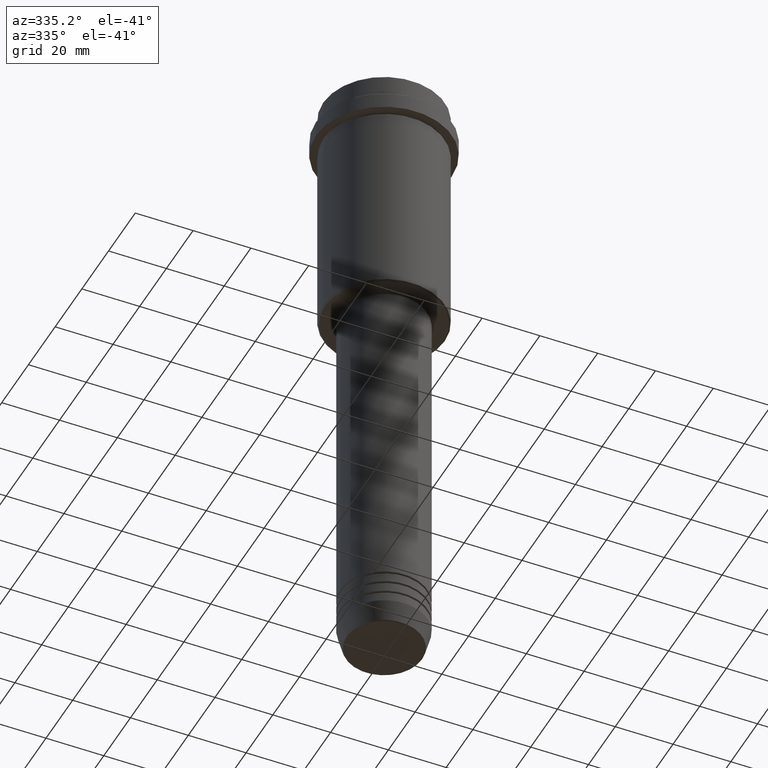
[diagram: clean part render]
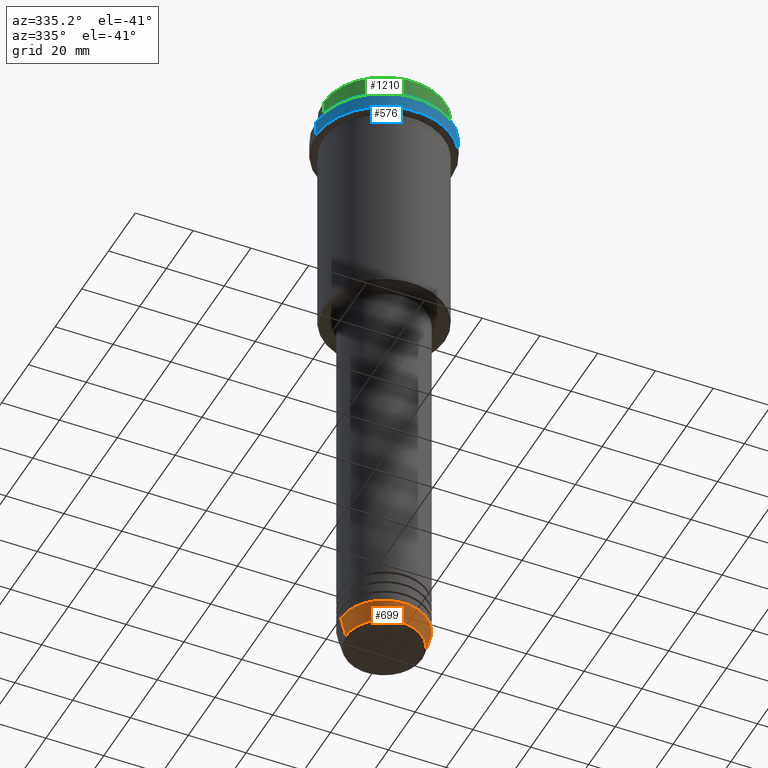
[diagram: same view with three faces highlighted in distinct colors, each labeled with its STEP entity id]
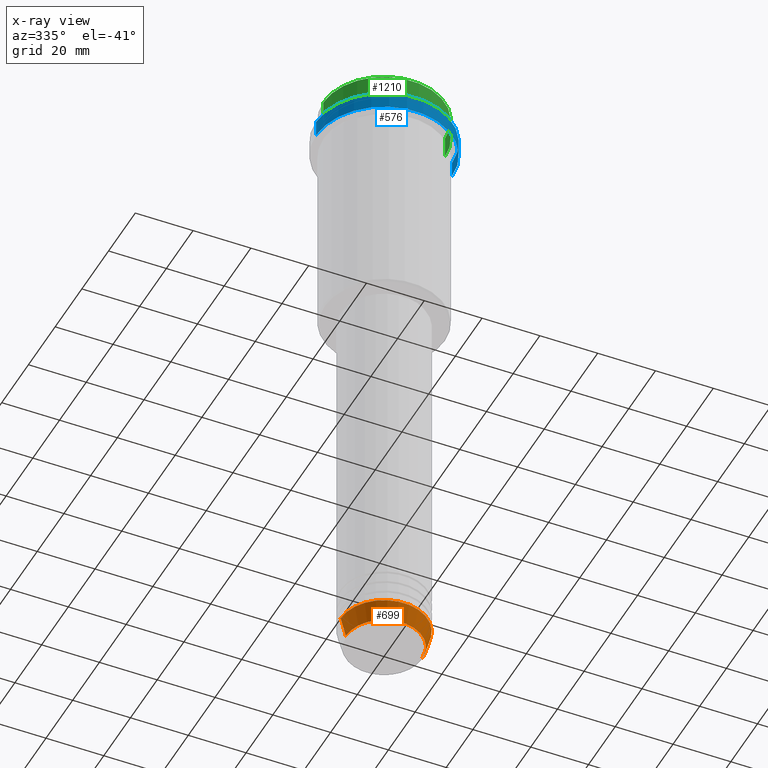
[diagram: x-ray of the same camera — body ghosted, the three highlighted faces saturated]
A machine part, auxiliary view with three faces highlighted in distinct colors.
The next image is the same camera in x-ray (body ghosted, the three faces saturated) — at least one of them is partly hidden behind the body in this view.
Their STEP definitions:

[orange] entity #699 — the highlighted conical surface has half-angle 15 deg.
#41 = DIRECTION ( 'NONE',  ( 0.2588190451025213501, 0.000000000000000000, 0.9659258262890680902 ) ) ;
#80 = AXIS2_PLACEMENT_3D ( 'NONE', #776, #1205, #661 ) ;
#140 = EDGE_CURVE ( 'NONE', #239, #464, #554, .T. ) ;
#157 = EDGE_CURVE ( 'NONE', #784, #464, #1021, .T. ) ;
#189 = LINE ( 'NONE', #409, #510 ) ;
#239 = VERTEX_POINT ( 'NONE', #1382 ) ;
#277 = VECTOR ( 'NONE', #41, 1000.000000000000000 ) ;
#305 = CIRCLE ( 'NONE', #872, 13.22365507213719482 ) ;
#405 = ORIENTED_EDGE ( 'NONE', *, *, #529, .T. ) ;
#409 = CARTESIAN_POINT ( 'NONE',  ( -15.00000000000000000, 1.836970198721029589E-15, -213.0000000000000284 ) ) ;
#440 = VERTEX_POINT ( 'NONE', #1212 ) ;
#464 = VERTEX_POINT ( 'NONE', #674 ) ;
#510 = VECTOR ( 'NONE', #1065, 1000.000000000000000 ) ;
#529 = EDGE_CURVE ( 'NONE', #440, #784, #305, .T. ) ;
#532 = ORIENTED_EDGE ( 'NONE', *, *, #657, .F. ) ;
#554 = CIRCLE ( 'NONE', #821, 15.00000000000000000 ) ;
#580 = EDGE_LOOP ( 'NONE', ( #532, #405, #1251, #1331 ) ) ;
#593 = CONICAL_SURFACE ( 'NONE', #80, 15.00000000000000000, 0.2617993877991500740 ) ;
#657 = EDGE_CURVE ( 'NONE', #440, #239, #189, .T. ) ;
#661 = DIRECTION ( 'NONE',  ( 1.000000000000000000, 0.000000000000000000, 0.000000000000000000 ) ) ;
#674 = CARTESIAN_POINT ( 'NONE',  ( 15.00000000000000000, 0.000000000000000000, -213.0000000000000284 ) ) ;
#699 = ADVANCED_FACE ( 'NONE', ( #1109 ), #593, .T. ) ;
#712 = CARTESIAN_POINT ( 'NONE',  ( 15.00000000000000000, 0.000000000000000000, -213.0000000000000284 ) ) ;
#739 = DIRECTION ( 'NONE',  ( 1.000000000000000000, 0.000000000000000000, 0.000000000000000000 ) ) ;
#776 = CARTESIAN_POINT ( 'NONE',  ( 0.000000000000000000, 0.000000000000000000, -213.0000000000000284 ) ) ;
#784 = VERTEX_POINT ( 'NONE', #1012 ) ;
#819 = CARTESIAN_POINT ( 'NONE',  ( 0.000000000000000000, 0.000000000000000000, -213.0000000000000284 ) ) ;
#821 = AXIS2_PLACEMENT_3D ( 'NONE', #819, #1234, #1347 ) ;
#872 = AXIS2_PLACEMENT_3D ( 'NONE', #963, #1391, #739 ) ;
#963 = CARTESIAN_POINT ( 'NONE',  ( 0.000000000000000000, 0.000000000000000000, -219.6294095225512706 ) ) ;
#1012 = CARTESIAN_POINT ( 'NONE',  ( 13.22365507213719482, 0.000000000000000000, -219.6294095225512706 ) ) ;
#1021 = LINE ( 'NONE', #712, #277 ) ;
#1065 = DIRECTION ( 'NONE',  ( -0.2588190451025213501, 3.169619151431772337E-17, 0.9659258262890680902 ) ) ;
#1109 = FACE_OUTER_BOUND ( 'NONE', #580, .T. ) ;
#1205 = DIRECTION ( 'NONE',  ( -0.000000000000000000, -0.000000000000000000, 1.000000000000000000 ) ) ;
#1212 = CARTESIAN_POINT ( 'NONE',  ( -13.22365507213719660, 1.728200442216588780E-15, -219.6294095225512706 ) ) ;
#1234 = DIRECTION ( 'NONE',  ( -0.000000000000000000, -0.000000000000000000, 1.000000000000000000 ) ) ;
#1251 = ORIENTED_EDGE ( 'NONE', *, *, #157, .T. ) ;
#1331 = ORIENTED_EDGE ( 'NONE', *, *, #140, .F. ) ;
#1347 = DIRECTION ( 'NONE',  ( 1.000000000000000000, 0.000000000000000000, 0.000000000000000000 ) ) ;
#1382 = CARTESIAN_POINT ( 'NONE',  ( -15.00000000000000000, 1.836970198721029589E-15, -213.0000000000000284 ) ) ;
#1391 = DIRECTION ( 'NONE',  ( -0.000000000000000000, -0.000000000000000000, 1.000000000000000000 ) ) ;

[blue] entity #576 — the highlighted cylindrical surface (partial cylindrical patch) has radius 23.5 mm, axis along (-0, -0, 1).
#5 = CIRCLE ( 'NONE', #995, 23.50000000000000000 ) ;
#34 = LINE ( 'NONE', #1188, #788 ) ;
#69 = CYLINDRICAL_SURFACE ( 'NONE', #1309, 23.50000000000000000 ) ;
#97 = CARTESIAN_POINT ( 'NONE',  ( 0.000000000000000000, 0.000000000000000000, 0.000000000000000000 ) ) ;
#123 = CARTESIAN_POINT ( 'NONE',  ( 23.50000000000000000, 0.000000000000000000, 0.000000000000000000 ) ) ;
#171 = CARTESIAN_POINT ( 'NONE',  ( 0.000000000000000000, 0.000000000000000000, -9.499999999999973355 ) ) ;
#177 = VERTEX_POINT ( 'NONE', #504 ) ;
#197 = FACE_OUTER_BOUND ( 'NONE', #1022, .T. ) ;
#213 = VECTOR ( 'NONE', #447, 1000.000000000000000 ) ;
#223 = CARTESIAN_POINT ( 'NONE',  ( -23.50000000000000000, 2.877919977996280320E-15, -9.499999999999973355 ) ) ;
#287 = VERTEX_POINT ( 'NONE', #1163 ) ;
#310 = CARTESIAN_POINT ( 'NONE',  ( 0.000000000000000000, 0.000000000000000000, -15.00000000000000178 ) ) ;
#312 = CARTESIAN_POINT ( 'NONE',  ( 23.50000000000000000, 0.000000000000000000, -9.499999999999973355 ) ) ;
#336 = ORIENTED_EDGE ( 'NONE', *, *, #1142, .T. ) ;
#397 = DIRECTION ( 'NONE',  ( 1.000000000000000000, 0.000000000000000000, 0.000000000000000000 ) ) ;
#414 = DIRECTION ( 'NONE',  ( -0.000000000000000000, -0.000000000000000000, 1.000000000000000000 ) ) ;
#417 = VERTEX_POINT ( 'NONE', #223 ) ;
#433 = EDGE_CURVE ( 'NONE', #177, #500, #986, .T. ) ;
#443 = CIRCLE ( 'NONE', #1332, 23.50000000000000355 ) ;
#447 = DIRECTION ( 'NONE',  ( -0.000000000000000000, -0.000000000000000000, 1.000000000000000000 ) ) ;
#500 = VERTEX_POINT ( 'NONE', #312 ) ;
#504 = CARTESIAN_POINT ( 'NONE',  ( 23.50000000000000355, 0.000000000000000000, -15.00000000000000178 ) ) ;
#515 = DIRECTION ( 'NONE',  ( 1.000000000000000000, 0.000000000000000000, 0.000000000000000000 ) ) ;
#576 = ADVANCED_FACE ( 'NONE', ( #197 ), #69, .T. ) ;
#685 = DIRECTION ( 'NONE',  ( 1.000000000000000000, 0.000000000000000000, 0.000000000000000000 ) ) ;
#742 = ORIENTED_EDGE ( 'NONE', *, *, #1384, .F. ) ;
#788 = VECTOR ( 'NONE', #866, 1000.000000000000000 ) ;
#866 = DIRECTION ( 'NONE',  ( -0.000000000000000000, -0.000000000000000000, 1.000000000000000000 ) ) ;
#938 = EDGE_CURVE ( 'NONE', #287, #177, #443, .T. ) ;
#986 = LINE ( 'NONE', #123, #213 ) ;
#995 = AXIS2_PLACEMENT_3D ( 'NONE', #171, #1265, #685 ) ;
#1022 = EDGE_LOOP ( 'NONE', ( #742, #1126, #1206, #336 ) ) ;
#1126 = ORIENTED_EDGE ( 'NONE', *, *, #938, .T. ) ;
#1142 = EDGE_CURVE ( 'NONE', #500, #417, #5, .T. ) ;
#1162 = DIRECTION ( 'NONE',  ( -0.000000000000000000, -0.000000000000000000, 1.000000000000000000 ) ) ;
#1163 = CARTESIAN_POINT ( 'NONE',  ( -23.50000000000000711, 2.877919977996281109E-15, -15.00000000000000178 ) ) ;
#1188 = CARTESIAN_POINT ( 'NONE',  ( -23.50000000000000000, 2.877919977996280320E-15, 0.000000000000000000 ) ) ;
#1206 = ORIENTED_EDGE ( 'NONE', *, *, #433, .T. ) ;
#1265 = DIRECTION ( 'NONE',  ( 0.000000000000000000, 0.000000000000000000, -1.000000000000000000 ) ) ;
#1309 = AXIS2_PLACEMENT_3D ( 'NONE', #97, #414, #515 ) ;
#1332 = AXIS2_PLACEMENT_3D ( 'NONE', #310, #1162, #397 ) ;
#1384 = EDGE_CURVE ( 'NONE', #287, #417, #34, .T. ) ;

[green] entity #1210 — the highlighted cylindrical surface (partial cylindrical patch) has radius 21 mm, axis along (-0, -0, 1).
#28 = VECTOR ( 'NONE', #136, 1000.000000000000000 ) ;
#39 = DIRECTION ( 'NONE',  ( 1.000000000000000000, 0.000000000000000000, 0.000000000000000000 ) ) ;
#82 = AXIS2_PLACEMENT_3D ( 'NONE', #1153, #1136, #1050 ) ;
#136 = DIRECTION ( 'NONE',  ( -0.000000000000000000, -0.000000000000000000, 1.000000000000000000 ) ) ;
#142 = ORIENTED_EDGE ( 'NONE', *, *, #470, .F. ) ;
#233 = CIRCLE ( 'NONE', #82, 20.99999999999999645 ) ;
#246 = CARTESIAN_POINT ( 'NONE',  ( -20.99999999999999645, 2.571758278209441267E-15, -0.5000000000000073275 ) ) ;
#250 = LINE ( 'NONE', #794, #28 ) ;
#276 = EDGE_LOOP ( 'NONE', ( #142, #1110, #1029, #787 ) ) ;
#301 = LINE ( 'NONE', #628, #615 ) ;
#307 = AXIS2_PLACEMENT_3D ( 'NONE', #1395, #1415, #39 ) ;
#324 = EDGE_CURVE ( 'NONE', #1028, #1333, #301, .T. ) ;
#353 = VERTEX_POINT ( 'NONE', #455 ) ;
#375 = CIRCLE ( 'NONE', #1170, 20.99999999999999645 ) ;
#455 = CARTESIAN_POINT ( 'NONE',  ( -20.99999999999999645, 2.571758278209441267E-15, -7.999999999999998224 ) ) ;
#470 = EDGE_CURVE ( 'NONE', #353, #1348, #250, .T. ) ;
#527 = CARTESIAN_POINT ( 'NONE',  ( 20.99999999999999645, 0.000000000000000000, -0.5000000000000073275 ) ) ;
#542 = CARTESIAN_POINT ( 'NONE',  ( 20.99999999999999645, 0.000000000000000000, -7.999999999999998224 ) ) ;
#615 = VECTOR ( 'NONE', #962, 1000.000000000000000 ) ;
#628 = CARTESIAN_POINT ( 'NONE',  ( 20.99999999999999645, 0.000000000000000000, 0.000000000000000000 ) ) ;
#754 = FACE_OUTER_BOUND ( 'NONE', #276, .T. ) ;
#787 = ORIENTED_EDGE ( 'NONE', *, *, #1252, .T. ) ;
#794 = CARTESIAN_POINT ( 'NONE',  ( -20.99999999999999645, 2.571758278209441267E-15, 0.000000000000000000 ) ) ;
#883 = DIRECTION ( 'NONE',  ( 0.000000000000000000, 0.000000000000000000, -1.000000000000000000 ) ) ;
#894 = DIRECTION ( 'NONE',  ( 1.000000000000000000, 0.000000000000000000, 0.000000000000000000 ) ) ;
#962 = DIRECTION ( 'NONE',  ( -0.000000000000000000, -0.000000000000000000, 1.000000000000000000 ) ) ;
#1002 = CARTESIAN_POINT ( 'NONE',  ( 0.000000000000000000, 0.000000000000000000, -0.5000000000000073275 ) ) ;
#1028 = VERTEX_POINT ( 'NONE', #542 ) ;
#1029 = ORIENTED_EDGE ( 'NONE', *, *, #324, .T. ) ;
#1050 = DIRECTION ( 'NONE',  ( 1.000000000000000000, 0.000000000000000000, 0.000000000000000000 ) ) ;
#1110 = ORIENTED_EDGE ( 'NONE', *, *, #1160, .T. ) ;
#1136 = DIRECTION ( 'NONE',  ( -0.000000000000000000, -0.000000000000000000, 1.000000000000000000 ) ) ;
#1153 = CARTESIAN_POINT ( 'NONE',  ( 0.000000000000000000, 0.000000000000000000, -7.999999999999998224 ) ) ;
#1160 = EDGE_CURVE ( 'NONE', #353, #1028, #233, .T. ) ;
#1170 = AXIS2_PLACEMENT_3D ( 'NONE', #1002, #883, #894 ) ;
#1196 = CYLINDRICAL_SURFACE ( 'NONE', #307, 20.99999999999999645 ) ;
#1210 = ADVANCED_FACE ( 'NONE', ( #754 ), #1196, .T. ) ;
#1252 = EDGE_CURVE ( 'NONE', #1333, #1348, #375, .T. ) ;
#1333 = VERTEX_POINT ( 'NONE', #527 ) ;
#1348 = VERTEX_POINT ( 'NONE', #246 ) ;
#1395 = CARTESIAN_POINT ( 'NONE',  ( 0.000000000000000000, 0.000000000000000000, 0.000000000000000000 ) ) ;
#1415 = DIRECTION ( 'NONE',  ( -0.000000000000000000, -0.000000000000000000, 1.000000000000000000 ) ) ;